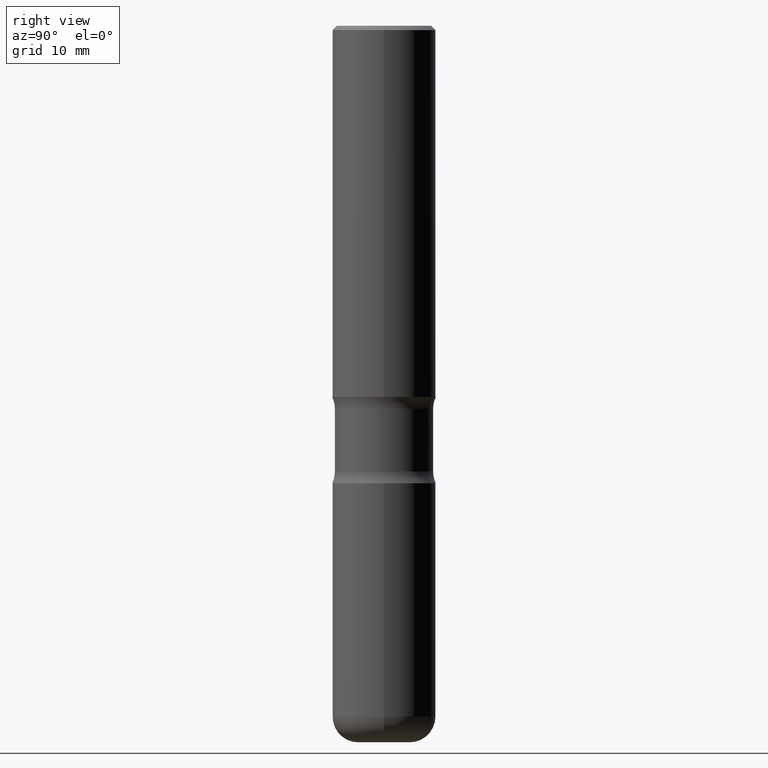
[diagram: clean part render]
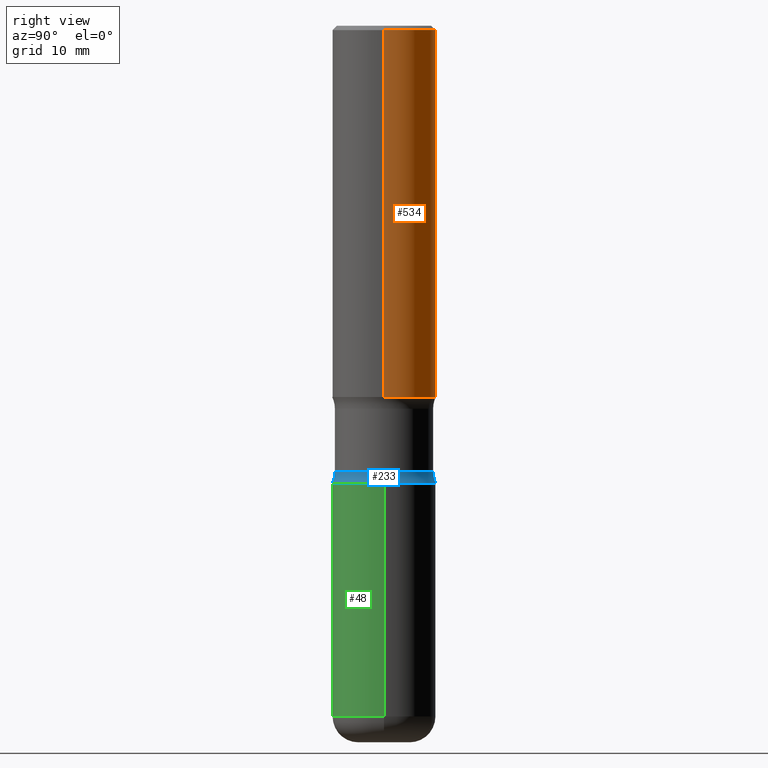
[diagram: same view with three faces highlighted in distinct colors, each labeled with its STEP entity id]
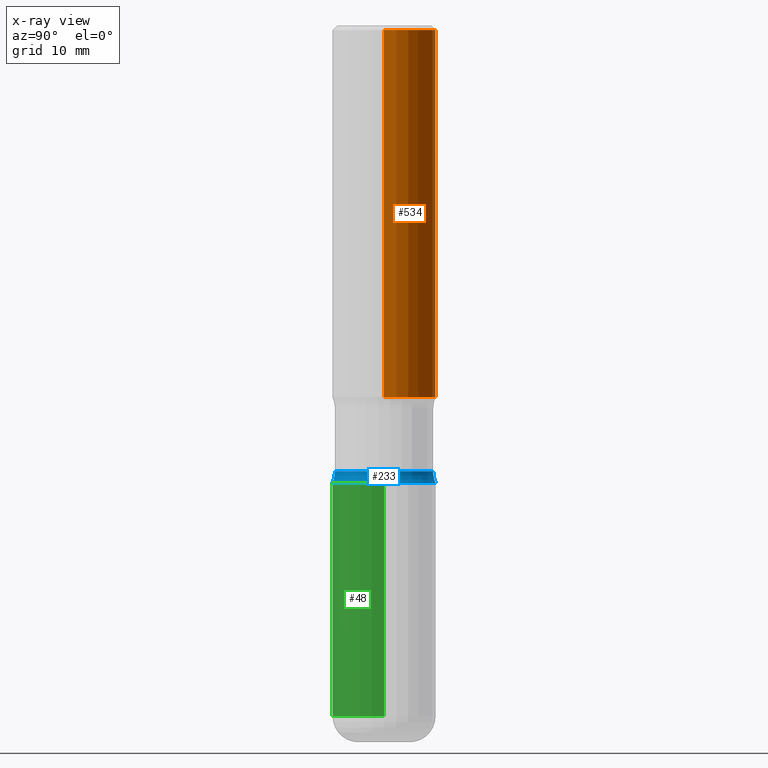
[diagram: x-ray of the same camera — body ghosted, the three highlighted faces saturated]
A machine part, right view with three faces highlighted in distinct colors.
The next image is the same camera in x-ray (body ghosted, the three faces saturated) — at least one of them is partly hidden behind the body in this view.
Their STEP definitions:

[orange] entity #534 — the highlighted cylindrical surface (partial cylindrical patch) has radius 5.9995 mm, axis along (-0, 0, 1).
#20 = DIRECTION ( 'NONE',  ( -2.445468806185136597E-29, 3.491481338843145583E-15, 1.000000000000000000 ) ) ;
#28 = AXIS2_PLACEMENT_3D ( 'NONE', #92, #309, #89 ) ;
#38 = CARTESIAN_POINT ( 'NONE',  ( 0.2362000000000002431, -1.649375784469497906E-15, 1.151752954443001209E-29 ) ) ;
#89 = DIRECTION ( 'NONE',  ( 1.000000000000000000, -6.982962677686266711E-15, 4.876176775795935793E-29 ) ) ;
#92 = CARTESIAN_POINT ( 'NONE',  ( 0.000000000000000000, 0.000000000000000000, 0.000000000000000000 ) ) ;
#95 = VECTOR ( 'NONE', #551, 39.37007874015748143 ) ;
#105 = AXIS2_PLACEMENT_3D ( 'NONE', #478, #257, #343 ) ;
#132 = EDGE_CURVE ( 'NONE', #321, #198, #426, .T. ) ;
#136 = EDGE_LOOP ( 'NONE', ( #471, #214, #407, #177 ) ) ;
#142 = DIRECTION ( 'NONE',  ( -2.445468806185136877E-29, 3.491481338843145188E-15, 1.000000000000000000 ) ) ;
#167 = CARTESIAN_POINT ( 'NONE',  ( 0.2362000000000004374, -7.560104542997059178E-15, -1.692899999999999627 ) ) ;
#177 = ORIENTED_EDGE ( 'NONE', *, *, #132, .F. ) ;
#198 = VERTEX_POINT ( 'NONE', #289 ) ;
#214 = ORIENTED_EDGE ( 'NONE', *, *, #435, .T. ) ;
#245 = EDGE_CURVE ( 'NONE', #198, #438, #386, .T. ) ;
#257 = DIRECTION ( 'NONE',  ( -2.445468806185136597E-29, 3.491481338843145583E-15, 1.000000000000000000 ) ) ;
#265 = AXIS2_PLACEMENT_3D ( 'NONE', #500, #20, #449 ) ;
#270 = FACE_OUTER_BOUND ( 'NONE', #136, .T. ) ;
#289 = CARTESIAN_POINT ( 'NONE',  ( 0.2362000000000000210, -1.690279253850499166E-15, -0.02000000000000006981 ) ) ;
#309 = DIRECTION ( 'NONE',  ( -2.445468806185136597E-29, 3.491481338843145583E-15, 1.000000000000000000 ) ) ;
#318 = LINE ( 'NONE', #365, #373 ) ;
#321 = VERTEX_POINT ( 'NONE', #167 ) ;
#343 = DIRECTION ( 'NONE',  ( 1.000000000000000000, -6.982962677686267499E-15, 0.000000000000000000 ) ) ;
#356 = VERTEX_POINT ( 'NONE', #401 ) ;
#365 = CARTESIAN_POINT ( 'NONE',  ( -0.2362000000000002431, 1.678301941865358366E-15, -1.161852468318209878E-29 ) ) ;
#373 = VECTOR ( 'NONE', #142, 39.37007874015748143 ) ;
#386 = CIRCLE ( 'NONE', #105, 0.2362000000000000210 ) ;
#401 = CARTESIAN_POINT ( 'NONE',  ( -0.2362000000000004374, -1.311977250786849481E-15, -1.692899999999999627 ) ) ;
#407 = ORIENTED_EDGE ( 'NONE', *, *, #245, .F. ) ;
#408 = CARTESIAN_POINT ( 'NONE',  ( -0.2362000000000000210, 1.579546157692633424E-15, -0.02000000000000006981 ) ) ;
#426 = LINE ( 'NONE', #38, #95 ) ;
#429 = CIRCLE ( 'NONE', #265, 0.2362000000000004374 ) ;
#435 = EDGE_CURVE ( 'NONE', #356, #438, #318, .T. ) ;
#438 = VERTEX_POINT ( 'NONE', #408 ) ;
#443 = EDGE_CURVE ( 'NONE', #321, #356, #429, .T. ) ;
#449 = DIRECTION ( 'NONE',  ( 1.000000000000000000, -6.982962677686267499E-15, 0.000000000000000000 ) ) ;
#471 = ORIENTED_EDGE ( 'NONE', *, *, #443, .T. ) ;
#478 = CARTESIAN_POINT ( 'NONE',  ( 4.890937612370289799E-31, -6.982962677686315028E-17, -0.02000000000000006981 ) ) ;
#500 = CARTESIAN_POINT ( 'NONE',  ( 4.139934141990816676E-29, -5.910728758527559497E-15, -1.692899999999999627 ) ) ;
#528 = CYLINDRICAL_SURFACE ( 'NONE', #28, 0.2362000000000002431 ) ;
#534 = ADVANCED_FACE ( 'NONE', ( #270 ), #528, .T. ) ;
#551 = DIRECTION ( 'NONE',  ( -2.445468806185136877E-29, 3.491481338843145188E-15, 1.000000000000000000 ) ) ;

[blue] entity #233 — the highlighted toroidal blend (fillet) surface has major radius 8.8646 mm and minor (blend) radius 3.175 mm.
#70 = CIRCLE ( 'NONE', #300, 0.1250000000000000278 ) ;
#77 = AXIS2_PLACEMENT_3D ( 'NONE', #125, #514, #78 ) ;
#78 = DIRECTION ( 'NONE',  ( -6.982962677686267499E-15, -1.000000000000000000, 0.000000000000000000 ) ) ;
#86 = CARTESIAN_POINT ( 'NONE',  ( -1.620449627073586564E-15, -0.2362000000000075151, -2.086599999999998456 ) ) ;
#88 = EDGE_CURVE ( 'NONE', #352, #111, #104, .T. ) ;
#104 = CIRCLE ( 'NONE', #77, 0.1250000000000000278 ) ;
#111 = VERTEX_POINT ( 'NONE', #200 ) ;
#125 = CARTESIAN_POINT ( 'NONE',  ( 2.437053974512556244E-15, 0.3489999999999929270, -2.032737582675858690 ) ) ;
#126 = CARTESIAN_POINT ( 'NONE',  ( 1.649375784469548590E-15, 0.2361999999999929711, -2.086600000000000676 ) ) ;
#129 = VERTEX_POINT ( 'NONE', #252 ) ;
#173 = AXIS2_PLACEMENT_3D ( 'NONE', #221, #388, #516 ) ;
#190 = DIRECTION ( 'NONE',  ( 2.394995749868806294E-29, -3.563761628236091094E-15, -1.000000000000000000 ) ) ;
#200 = CARTESIAN_POINT ( 'NONE',  ( 1.564183639801773497E-15, 0.2239999999999929270, -2.032737582675857801 ) ) ;
#213 = CARTESIAN_POINT ( 'NONE',  ( -2.394313801222215092E-15, -0.3490000000000071378, -2.032737582675855581 ) ) ;
#221 = CARTESIAN_POINT ( 'NONE',  ( 5.102715210985905155E-29, -7.285324961630105839E-15, -2.086599999999999344 ) ) ;
#233 = ADVANCED_FACE ( 'NONE', ( #469 ), #395, .F. ) ;
#252 = CARTESIAN_POINT ( 'NONE',  ( -1.578600589287179908E-15, -0.2240000000000071378, -2.032737582675856025 ) ) ;
#258 = VERTEX_POINT ( 'NONE', #86 ) ;
#264 = AXIS2_PLACEMENT_3D ( 'NONE', #387, #327, #557 ) ;
#299 = DIRECTION ( 'NONE',  ( 6.860497997771532351E-15, 1.000000000000000000, 0.000000000000000000 ) ) ;
#300 = AXIS2_PLACEMENT_3D ( 'NONE', #213, #440, #299 ) ;
#327 = DIRECTION ( 'NONE',  ( 2.394995749868806294E-29, -3.563761628236091094E-15, -1.000000000000000000 ) ) ;
#342 = EDGE_CURVE ( 'NONE', #258, #129, #70, .T. ) ;
#352 = VERTEX_POINT ( 'NONE', #126 ) ;
#353 = EDGE_CURVE ( 'NONE', #352, #258, #458, .T. ) ;
#362 = CIRCLE ( 'NONE', #513, 0.2240000000000000324 ) ;
#367 = DIRECTION ( 'NONE',  ( 6.982962677686265922E-15, 1.000000000000000000, -3.658724991514637697E-15 ) ) ;
#368 = EDGE_LOOP ( 'NONE', ( #420, #402, #441, #525 ) ) ;
#387 = CARTESIAN_POINT ( 'NONE',  ( 4.970996349593988769E-29, -7.097265336677881413E-15, -2.032737582675857357 ) ) ;
#388 = DIRECTION ( 'NONE',  ( 2.394995749868806294E-29, -3.563761628236091094E-15, -1.000000000000000000 ) ) ;
#395 = TOROIDAL_SURFACE ( 'NONE', #264, 0.3490000000000000324, 0.1250000000000000555 ) ;
#402 = ORIENTED_EDGE ( 'NONE', *, *, #353, .F. ) ;
#411 = CARTESIAN_POINT ( 'NONE',  ( 4.973714950416923137E-29, -7.093372145566288471E-15, -2.032737582675856913 ) ) ;
#420 = ORIENTED_EDGE ( 'NONE', *, *, #342, .F. ) ;
#440 = DIRECTION ( 'NONE',  ( 1.000000000000000000, -6.860497997771530774E-15, 4.839913701373677961E-29 ) ) ;
#441 = ORIENTED_EDGE ( 'NONE', *, *, #88, .T. ) ;
#458 = CIRCLE ( 'NONE', #173, 0.2362000000000002153 ) ;
#469 = FACE_OUTER_BOUND ( 'NONE', #368, .T. ) ;
#509 = EDGE_CURVE ( 'NONE', #111, #129, #362, .T. ) ;
#513 = AXIS2_PLACEMENT_3D ( 'NONE', #411, #190, #367 ) ;
#514 = DIRECTION ( 'NONE',  ( -1.000000000000000000, 6.982962677686265922E-15, -4.883557194083112340E-29 ) ) ;
#516 = DIRECTION ( 'NONE',  ( 6.982962677686265133E-15, 1.000000000000000000, -3.469747663417773847E-15 ) ) ;
#525 = ORIENTED_EDGE ( 'NONE', *, *, #509, .T. ) ;
#557 = DIRECTION ( 'NONE',  ( 6.982962677686265133E-15, 1.000000000000000000, -3.563761628236091094E-15 ) ) ;

[green] entity #48 — the highlighted cylindrical surface (partial cylindrical patch) has radius 5.9995 mm, axis along (-0, 0, 1).
#3 = CIRCLE ( 'NONE', #320, 0.2362000000000002153 ) ;
#16 = VECTOR ( 'NONE', #369, 39.37007874015748143 ) ;
#22 = LINE ( 'NONE', #192, #16 ) ;
#30 = DIRECTION ( 'NONE',  ( 1.000000000000000000, -6.982962677686266711E-15, 4.876176775795935793E-29 ) ) ;
#42 = VECTOR ( 'NONE', #291, 39.37007874015748143 ) ;
#48 = ADVANCED_FACE ( 'NONE', ( #543 ), #71, .T. ) ;
#64 = ORIENTED_EDGE ( 'NONE', *, *, #467, .T. ) ;
#71 = CYLINDRICAL_SURFACE ( 'NONE', #319, 0.2362000000000002431 ) ;
#154 = CARTESIAN_POINT ( 'NONE',  ( 0.000000000000000000, 0.000000000000000000, 0.000000000000000000 ) ) ;
#191 = VERTEX_POINT ( 'NONE', #427 ) ;
#192 = CARTESIAN_POINT ( 'NONE',  ( 0.2362000000000002431, -1.649375784469497906E-15, 1.151752954443001209E-29 ) ) ;
#203 = EDGE_CURVE ( 'NONE', #366, #253, #335, .T. ) ;
#225 = EDGE_LOOP ( 'NONE', ( #445, #285, #64, #501 ) ) ;
#227 = DIRECTION ( 'NONE',  ( 1.000000000000000000, -6.982962677686265133E-15, 0.000000000000000000 ) ) ;
#234 = CARTESIAN_POINT ( 'NONE',  ( 5.102715210985905155E-29, -7.285324961630105839E-15, -2.086599999999999344 ) ) ;
#243 = CARTESIAN_POINT ( 'NONE',  ( -0.2362000000000002431, 1.678301941865358366E-15, -1.161852468318209878E-29 ) ) ;
#253 = VERTEX_POINT ( 'NONE', #524 ) ;
#271 = DIRECTION ( 'NONE',  ( -2.445468806185136597E-29, 3.491481338843145583E-15, 1.000000000000000000 ) ) ;
#285 = ORIENTED_EDGE ( 'NONE', *, *, #475, .T. ) ;
#291 = DIRECTION ( 'NONE',  ( -2.445468806185136877E-29, 3.491481338843145188E-15, 1.000000000000000000 ) ) ;
#301 = CARTESIAN_POINT ( 'NONE',  ( -0.2362000000000003264, -9.318816831088897849E-15, -3.149700000000000166 ) ) ;
#319 = AXIS2_PLACEMENT_3D ( 'NONE', #154, #324, #30 ) ;
#320 = AXIS2_PLACEMENT_3D ( 'NONE', #234, #533, #496 ) ;
#324 = DIRECTION ( 'NONE',  ( -2.445468806185136597E-29, 3.491481338843145583E-15, 1.000000000000000000 ) ) ;
#330 = CIRCLE ( 'NONE', #397, 0.2362000000000002709 ) ;
#335 = LINE ( 'NONE', #243, #42 ) ;
#366 = VERTEX_POINT ( 'NONE', #301 ) ;
#369 = DIRECTION ( 'NONE',  ( -2.445468806185136877E-29, 3.491481338843145188E-15, 1.000000000000000000 ) ) ;
#382 = EDGE_CURVE ( 'NONE', #253, #527, #3, .T. ) ;
#397 = AXIS2_PLACEMENT_3D ( 'NONE', #405, #271, #227 ) ;
#405 = CARTESIAN_POINT ( 'NONE',  ( 7.702493098841325496E-29, -1.099711877295425582E-14, -3.149700000000000166 ) ) ;
#427 = CARTESIAN_POINT ( 'NONE',  ( 0.2362000000000003264, -1.264649455742375392E-14, -3.149700000000000166 ) ) ;
#445 = ORIENTED_EDGE ( 'NONE', *, *, #203, .F. ) ;
#467 = EDGE_CURVE ( 'NONE', #191, #527, #22, .T. ) ;
#475 = EDGE_CURVE ( 'NONE', #366, #191, #330, .T. ) ;
#496 = DIRECTION ( 'NONE',  ( 1.000000000000000000, -6.982962677686266711E-15, 0.000000000000000000 ) ) ;
#501 = ORIENTED_EDGE ( 'NONE', *, *, #382, .F. ) ;
#524 = CARTESIAN_POINT ( 'NONE',  ( -0.2362000000000002153, -7.462919925426822069E-15, -2.086599999999999344 ) ) ;
#527 = VERTEX_POINT ( 'NONE', #537 ) ;
#533 = DIRECTION ( 'NONE',  ( -2.445468806185136597E-29, 3.491481338843145583E-15, 1.000000000000000000 ) ) ;
#537 = CARTESIAN_POINT ( 'NONE',  ( 0.2362000000000002153, -8.934700746099602364E-15, -2.086599999999999344 ) ) ;
#543 = FACE_OUTER_BOUND ( 'NONE', #225, .T. ) ;